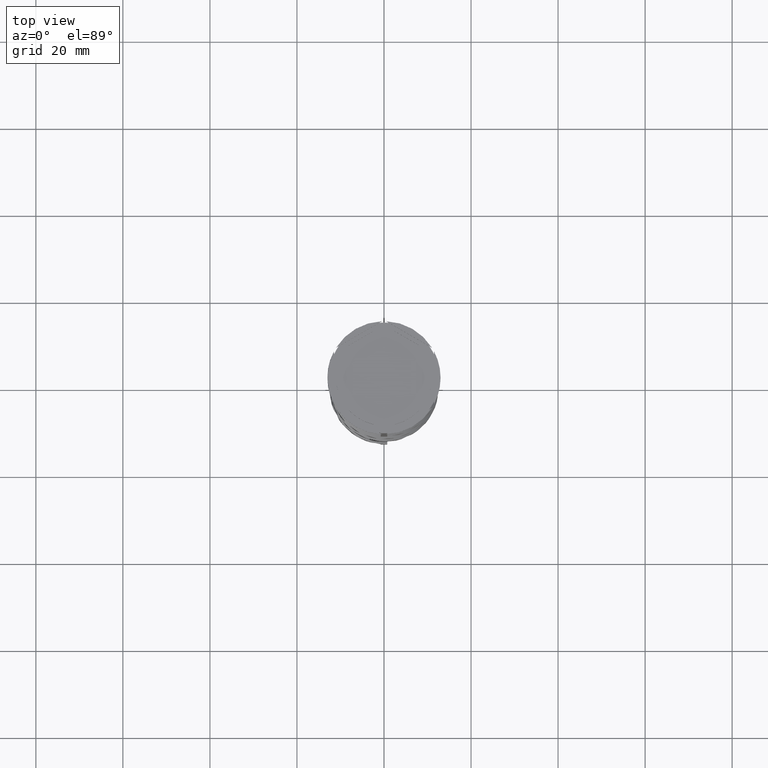
[diagram: clean part render]
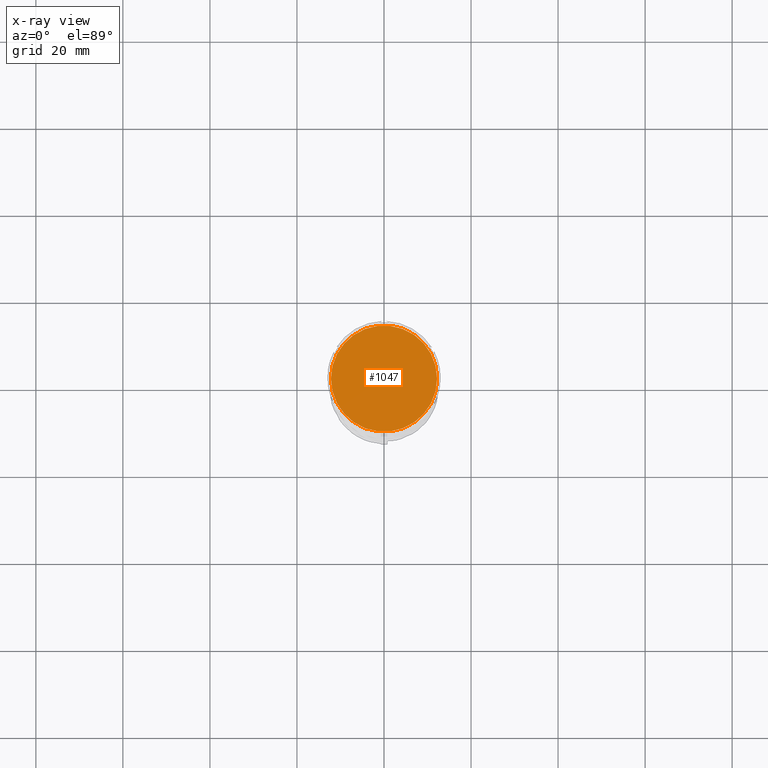
[diagram: x-ray — body ghosted, one internal face saturated and labeled with its STEP entity id]
A machine part, top view, then the same camera in x-ray: the body is ghosted and one INTERNAL B-rep face — a face not visible from any outside direction — is saturated and labeled: STEP entity #1047.
In plain terms, the highlighted planar face has unit normal (0, 0, -1).
Its self-contained STEP definition (entity closure, byte-faithful):
#233 = CARTESIAN_POINT ( 'NONE',  ( 12.20000000000000639, 1.512438796946981880E-15, -12.00000000000000000 ) ) ;
#345 = DIRECTION ( 'NONE',  ( -1.000000000000000000, 0.000000000000000000, 0.000000000000000000 ) ) ;
#402 = ORIENTED_EDGE ( 'NONE', *, *, #4049, .T. ) ;
#405 = EDGE_CURVE ( 'NONE', #2012, #448, #2398, .T. ) ;
#448 = VERTEX_POINT ( 'NONE', #2954 ) ;
#635 = CARTESIAN_POINT ( 'NONE',  ( 0.000000000000000000, 0.000000000000000000, -12.00000000000000000 ) ) ;
#1047 = ADVANCED_FACE ( 'NONE', ( #3789 ), #1897, .F. ) ;
#1052 = CARTESIAN_POINT ( 'NONE',  ( 0.000000000000000000, 0.000000000000000000, -12.00000000000000000 ) ) ;
#1897 = PLANE ( 'NONE',  #2196 ) ;
#1913 = DIRECTION ( 'NONE',  ( -1.000000000000000000, 0.000000000000000000, -0.000000000000000000 ) ) ;
#2012 = VERTEX_POINT ( 'NONE', #233 ) ;
#2196 = AXIS2_PLACEMENT_3D ( 'NONE', #635, #4087, #1913 ) ;
#2218 = CIRCLE ( 'NONE', #2699, 12.20000000000000639 ) ;
#2316 = DIRECTION ( 'NONE',  ( -1.000000000000000000, 0.000000000000000000, 0.000000000000000000 ) ) ;
#2398 = CIRCLE ( 'NONE', #4021, 12.20000000000000639 ) ;
#2699 = AXIS2_PLACEMENT_3D ( 'NONE', #1052, #3607, #2316 ) ;
#2911 = CARTESIAN_POINT ( 'NONE',  ( 0.000000000000000000, 0.000000000000000000, -12.00000000000000000 ) ) ;
#2954 = CARTESIAN_POINT ( 'NONE',  ( -12.20000000000000639, 0.000000000000000000, -12.00000000000000000 ) ) ;
#3080 = ORIENTED_EDGE ( 'NONE', *, *, #405, .T. ) ;
#3583 = EDGE_LOOP ( 'NONE', ( #402, #3080 ) ) ;
#3607 = DIRECTION ( 'NONE',  ( -0.000000000000000000, -0.000000000000000000, 1.000000000000000000 ) ) ;
#3789 = FACE_OUTER_BOUND ( 'NONE', #3583, .T. ) ;
#3883 = DIRECTION ( 'NONE',  ( -0.000000000000000000, -0.000000000000000000, 1.000000000000000000 ) ) ;
#4021 = AXIS2_PLACEMENT_3D ( 'NONE', #2911, #3883, #345 ) ;
#4049 = EDGE_CURVE ( 'NONE', #448, #2012, #2218, .T. ) ;
#4087 = DIRECTION ( 'NONE',  ( 0.000000000000000000, 0.000000000000000000, -1.000000000000000000 ) ) ;